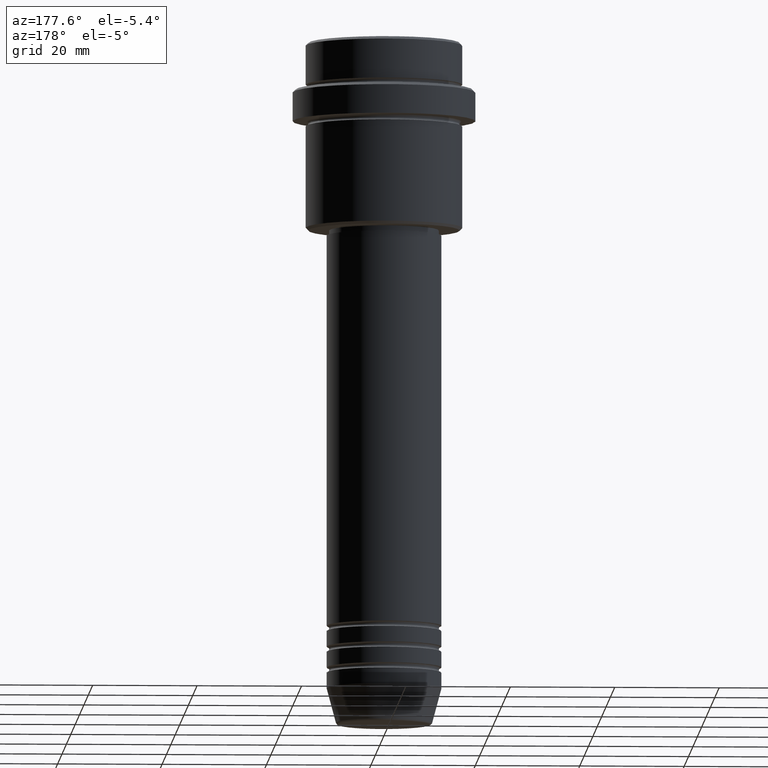
[diagram: clean part render]
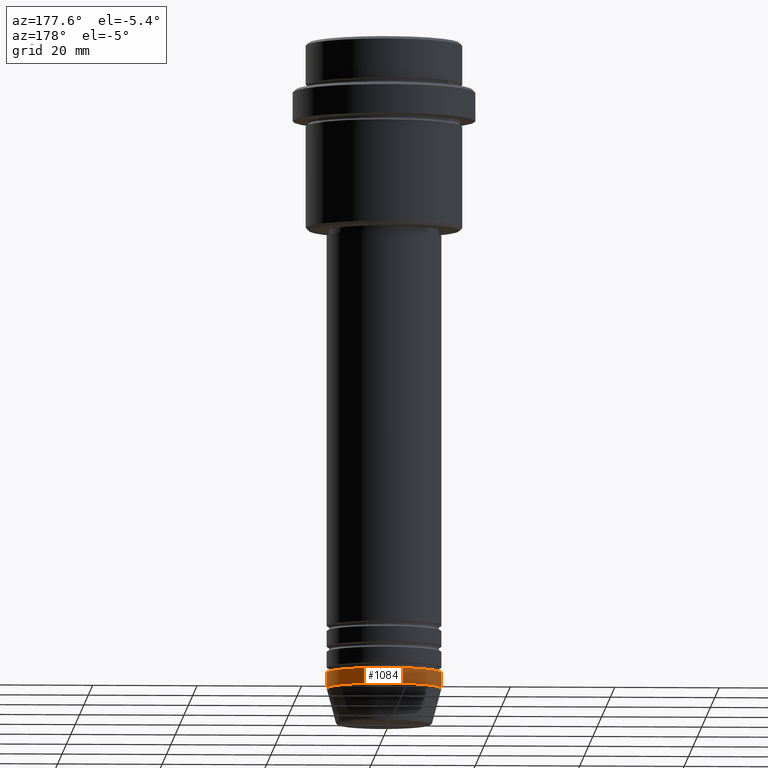
[diagram: same view with one face highlighted and labeled with its STEP entity id]
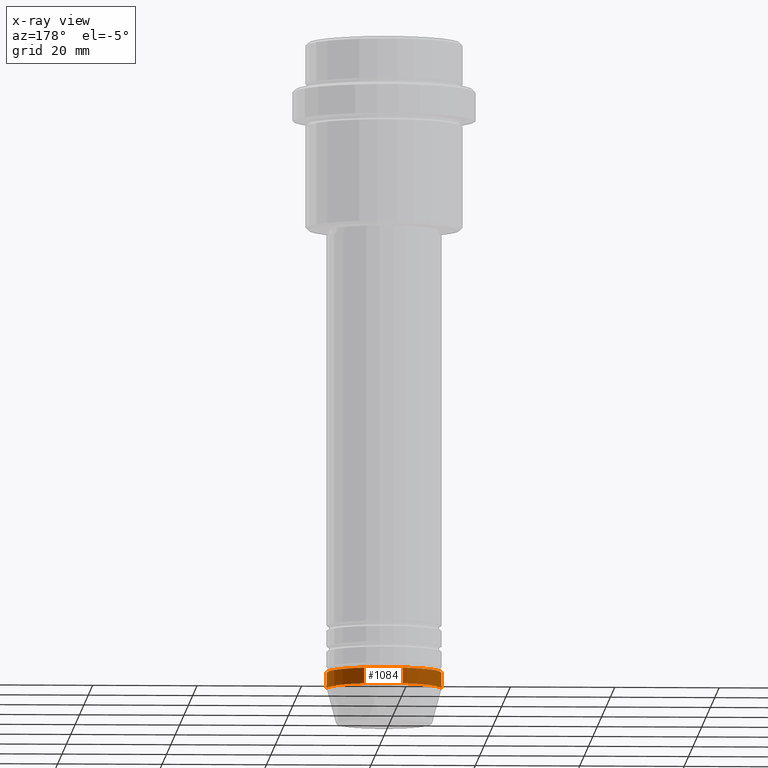
[diagram: x-ray of the same camera — body ghosted, the highlighted face saturated]
A machine part, auxiliary view. The second image highlights one B-rep face of the part: STEP entity #1084.
The next image is the same camera in x-ray: the body ghosted, the highlighted face saturated — about 0% of this face is hidden behind the body in this view.
In plain terms, the highlighted cylindrical surface (partial cylindrical patch) has radius 11 mm, axis along (-0, -0, 1).
Its self-contained STEP definition (entity closure, byte-faithful):
#21 = EDGE_LOOP ( 'NONE', ( #668, #1020, #276, #380 ) ) ;
#87 = CARTESIAN_POINT ( 'NONE',  ( 0.000000000000000000, 0.000000000000000000, 0.000000000000000000 ) ) ;
#133 = EDGE_CURVE ( 'NONE', #925, #149, #402, .T. ) ;
#137 = LINE ( 'NONE', #1340, #848 ) ;
#140 = CARTESIAN_POINT ( 'NONE',  ( 0.000000000000000000, 0.000000000000000000, -124.0000000000000000 ) ) ;
#149 = VERTEX_POINT ( 'NONE', #581 ) ;
#190 = CYLINDRICAL_SURFACE ( 'NONE', #333, 11.00000000000000000 ) ;
#191 = AXIS2_PLACEMENT_3D ( 'NONE', #140, #912, #617 ) ;
#230 = CARTESIAN_POINT ( 'NONE',  ( 0.000000000000000000, 0.000000000000000000, -121.0000000000000000 ) ) ;
#276 = ORIENTED_EDGE ( 'NONE', *, *, #1294, .F. ) ;
#277 = EDGE_CURVE ( 'NONE', #925, #1178, #968, .T. ) ;
#299 = DIRECTION ( 'NONE',  ( -0.000000000000000000, -0.000000000000000000, 1.000000000000000000 ) ) ;
#302 = DIRECTION ( 'NONE',  ( -0.000000000000000000, -0.000000000000000000, 1.000000000000000000 ) ) ;
#333 = AXIS2_PLACEMENT_3D ( 'NONE', #87, #302, #1190 ) ;
#380 = ORIENTED_EDGE ( 'NONE', *, *, #277, .F. ) ;
#398 = EDGE_CURVE ( 'NONE', #149, #536, #137, .T. ) ;
#402 = CIRCLE ( 'NONE', #191, 11.00000000000000000 ) ;
#465 = DIRECTION ( 'NONE',  ( -0.000000000000000000, -0.000000000000000000, 1.000000000000000000 ) ) ;
#536 = VERTEX_POINT ( 'NONE', #1360 ) ;
#581 = CARTESIAN_POINT ( 'NONE',  ( -11.00000000000000000, 1.347111479062088405E-15, -124.0000000000000000 ) ) ;
#617 = DIRECTION ( 'NONE',  ( 1.000000000000000000, 0.000000000000000000, 0.000000000000000000 ) ) ;
#627 = AXIS2_PLACEMENT_3D ( 'NONE', #230, #926, #1347 ) ;
#656 = CARTESIAN_POINT ( 'NONE',  ( 11.00000000000000000, 0.000000000000000000, 0.000000000000000000 ) ) ;
#668 = ORIENTED_EDGE ( 'NONE', *, *, #133, .T. ) ;
#695 = CARTESIAN_POINT ( 'NONE',  ( 11.00000000000000000, 0.000000000000000000, -121.0000000000000000 ) ) ;
#717 = VECTOR ( 'NONE', #299, 1000.000000000000000 ) ;
#718 = FACE_OUTER_BOUND ( 'NONE', #21, .T. ) ;
#778 = CARTESIAN_POINT ( 'NONE',  ( 11.00000000000000000, 0.000000000000000000, -124.0000000000000000 ) ) ;
#848 = VECTOR ( 'NONE', #465, 1000.000000000000000 ) ;
#912 = DIRECTION ( 'NONE',  ( -0.000000000000000000, -0.000000000000000000, 1.000000000000000000 ) ) ;
#925 = VERTEX_POINT ( 'NONE', #778 ) ;
#926 = DIRECTION ( 'NONE',  ( -0.000000000000000000, -0.000000000000000000, 1.000000000000000000 ) ) ;
#968 = LINE ( 'NONE', #656, #717 ) ;
#1020 = ORIENTED_EDGE ( 'NONE', *, *, #398, .T. ) ;
#1084 = ADVANCED_FACE ( 'NONE', ( #718 ), #190, .T. ) ;
#1178 = VERTEX_POINT ( 'NONE', #695 ) ;
#1190 = DIRECTION ( 'NONE',  ( 1.000000000000000000, 0.000000000000000000, 0.000000000000000000 ) ) ;
#1292 = CIRCLE ( 'NONE', #627, 11.00000000000000000 ) ;
#1294 = EDGE_CURVE ( 'NONE', #1178, #536, #1292, .T. ) ;
#1340 = CARTESIAN_POINT ( 'NONE',  ( -11.00000000000000000, 1.347111479062088405E-15, 0.000000000000000000 ) ) ;
#1347 = DIRECTION ( 'NONE',  ( 1.000000000000000000, 0.000000000000000000, 0.000000000000000000 ) ) ;
#1360 = CARTESIAN_POINT ( 'NONE',  ( -11.00000000000000000, 1.347111479062088405E-15, -121.0000000000000000 ) ) ;